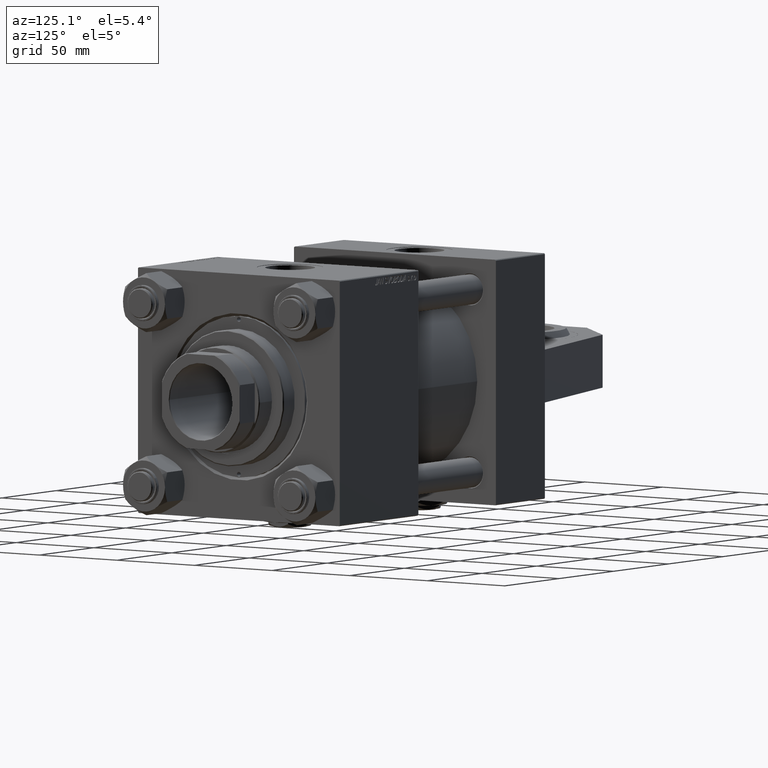
[diagram: clean part render]
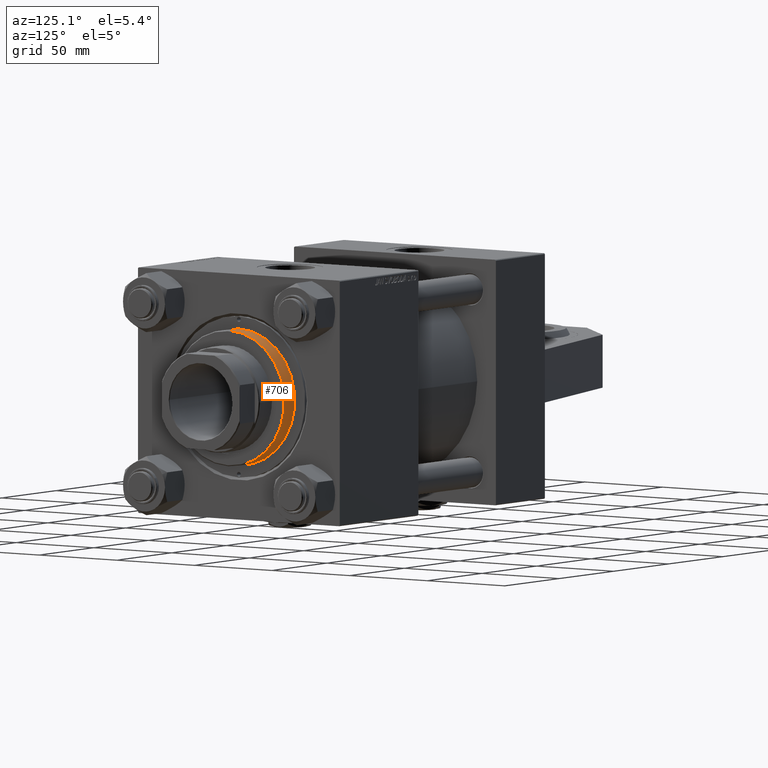
[diagram: same view with one face highlighted and labeled with its STEP entity id]
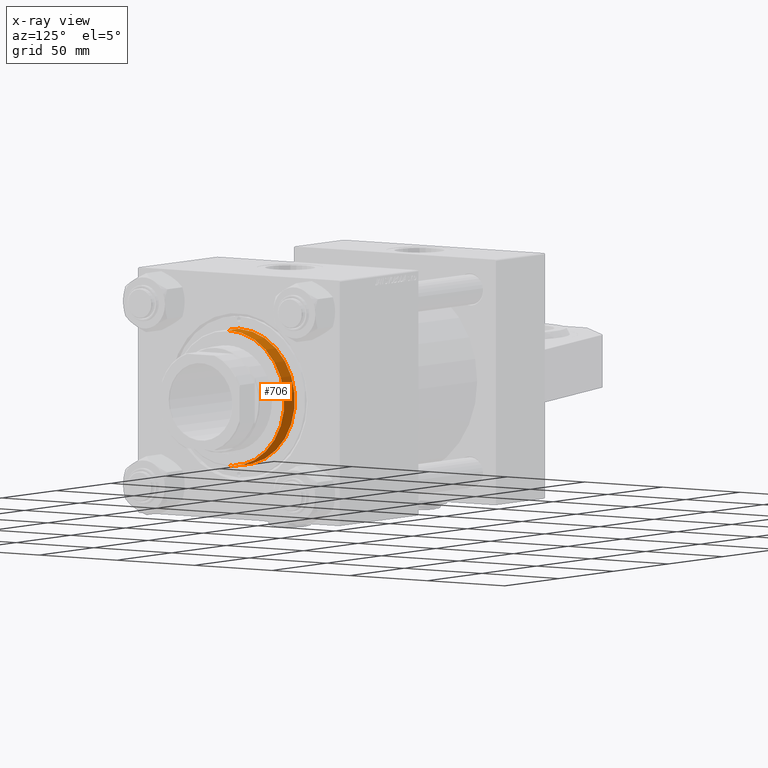
[diagram: x-ray of the same camera — body ghosted, the highlighted face saturated]
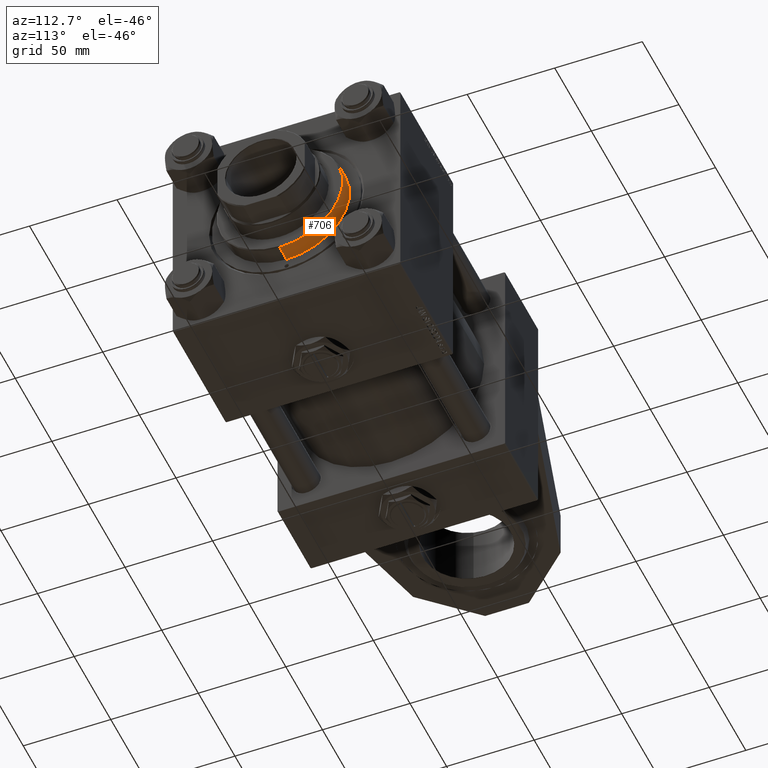
[diagram: same view with one face highlighted and labeled with its STEP entity id]
A machine part, auxiliary view. The second image highlights one B-rep face of the part: STEP entity #706.
The next image is the same camera in x-ray: the body ghosted, the highlighted face saturated — about 0% of this face is hidden behind the body in this view.
A second angle (auxiliary view) of the same face is appended — the face is thin or edge-on in the first view.
In plain terms, the highlighted cylindrical surface (partial cylindrical patch) has radius 36 mm, axis along (-1, -0, 0).
Its self-contained STEP definition (entity closure, byte-faithful):
#706 = ADVANCED_FACE ( 'NONE', ( #31508 ), #11521, .T. ) ;
#1288 = VERTEX_POINT ( 'NONE', #22823 ) ;
#2418 = DIRECTION ( 'NONE',  ( 1.000000000000000000, 0.000000000000000000, 0.000000000000000000 ) ) ;
#3783 = CARTESIAN_POINT ( 'NONE',  ( 0.000000000000000000, 0.000000000000000000, 36.69999999999999574 ) ) ;
#5996 = LINE ( 'NONE', #50764, #13962 ) ;
#7405 = CIRCLE ( 'NONE', #49928, 36.00000000000000000 ) ;
#8074 = AXIS2_PLACEMENT_3D ( 'NONE', #3783, #47781, #11258 ) ;
#10928 = ORIENTED_EDGE ( 'NONE', *, *, #37915, .T. ) ;
#11258 = DIRECTION ( 'NONE',  ( -1.000000000000000000, 0.000000000000000000, 0.000000000000000000 ) ) ;
#11521 = CYLINDRICAL_SURFACE ( 'NONE', #8074, 36.00000000000000000 ) ;
#12814 = EDGE_CURVE ( 'NONE', #20463, #1288, #33537, .T. ) ;
#13962 = VECTOR ( 'NONE', #14242, 1000.000000000000000 ) ;
#14242 = DIRECTION ( 'NONE',  ( -0.000000000000000000, -0.000000000000000000, -1.000000000000000000 ) ) ;
#17283 = CARTESIAN_POINT ( 'NONE',  ( -36.00000000000000000, 0.000000000000000000, 36.69999999999999574 ) ) ;
#18296 = DIRECTION ( 'NONE',  ( 1.000000000000000000, 0.000000000000000000, 0.000000000000000000 ) ) ;
#18935 = CARTESIAN_POINT ( 'NONE',  ( 36.00000000000000000, 4.408728476930470856E-15, 36.20000000000000284 ) ) ;
#19384 = ORIENTED_EDGE ( 'NONE', *, *, #32587, .T. ) ;
#20463 = VERTEX_POINT ( 'NONE', #31607 ) ;
#21847 = CIRCLE ( 'NONE', #29600, 36.00000000000000000 ) ;
#22782 = ORIENTED_EDGE ( 'NONE', *, *, #40834, .T. ) ;
#22823 = CARTESIAN_POINT ( 'NONE',  ( -36.00000000000000000, 0.000000000000000000, 26.69999999999999929 ) ) ;
#24730 = DIRECTION ( 'NONE',  ( -0.000000000000000000, -0.000000000000000000, -1.000000000000000000 ) ) ;
#29600 = AXIS2_PLACEMENT_3D ( 'NONE', #31694, #38915, #2418 ) ;
#31508 = FACE_OUTER_BOUND ( 'NONE', #31819, .T. ) ;
#31607 = CARTESIAN_POINT ( 'NONE',  ( -36.00000000000000000, 0.000000000000000000, 36.20000000000000284 ) ) ;
#31694 = CARTESIAN_POINT ( 'NONE',  ( 0.000000000000000000, 0.000000000000000000, 26.69999999999999929 ) ) ;
#31819 = EDGE_LOOP ( 'NONE', ( #10928, #19384, #22782, #37776 ) ) ;
#32587 = EDGE_CURVE ( 'NONE', #51078, #33249, #5996, .T. ) ;
#33249 = VERTEX_POINT ( 'NONE', #42115 ) ;
#33537 = LINE ( 'NONE', #17283, #50925 ) ;
#37776 = ORIENTED_EDGE ( 'NONE', *, *, #12814, .F. ) ;
#37915 = EDGE_CURVE ( 'NONE', #20463, #51078, #7405, .T. ) ;
#38915 = DIRECTION ( 'NONE',  ( 0.000000000000000000, 0.000000000000000000, 1.000000000000000000 ) ) ;
#40834 = EDGE_CURVE ( 'NONE', #33249, #1288, #21847, .T. ) ;
#42115 = CARTESIAN_POINT ( 'NONE',  ( 36.00000000000000000, 4.408728476930470856E-15, 26.69999999999999929 ) ) ;
#47781 = DIRECTION ( 'NONE',  ( -0.000000000000000000, -0.000000000000000000, -1.000000000000000000 ) ) ;
#49928 = AXIS2_PLACEMENT_3D ( 'NONE', #51066, #50543, #18296 ) ;
#50543 = DIRECTION ( 'NONE',  ( 0.000000000000000000, 0.000000000000000000, -1.000000000000000000 ) ) ;
#50764 = CARTESIAN_POINT ( 'NONE',  ( 36.00000000000000000, 4.408728476930470856E-15, 36.69999999999999574 ) ) ;
#50925 = VECTOR ( 'NONE', #24730, 1000.000000000000000 ) ;
#51066 = CARTESIAN_POINT ( 'NONE',  ( 0.000000000000000000, 0.000000000000000000, 36.20000000000000284 ) ) ;
#51078 = VERTEX_POINT ( 'NONE', #18935 ) ;